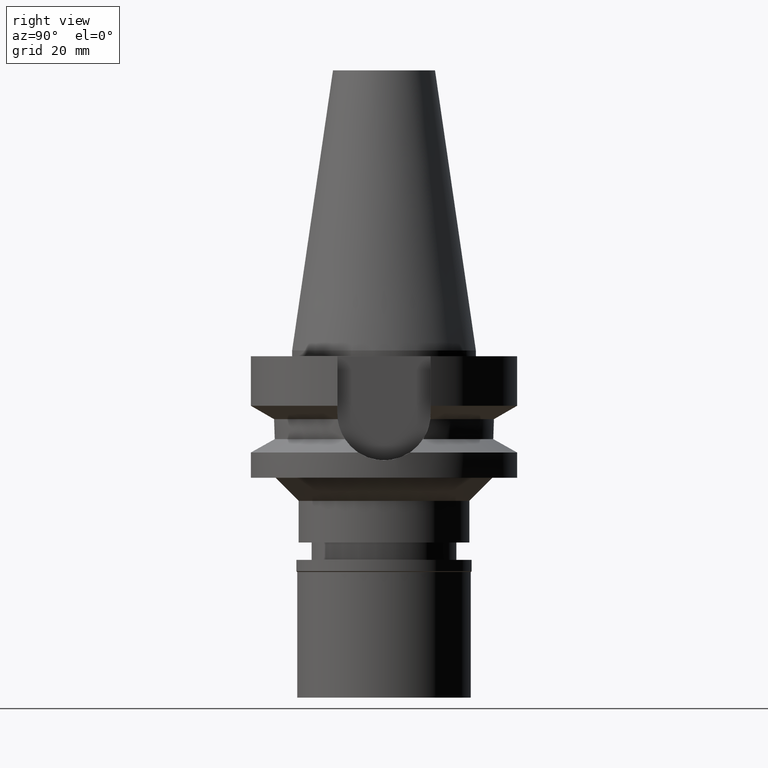
[diagram: clean part render]
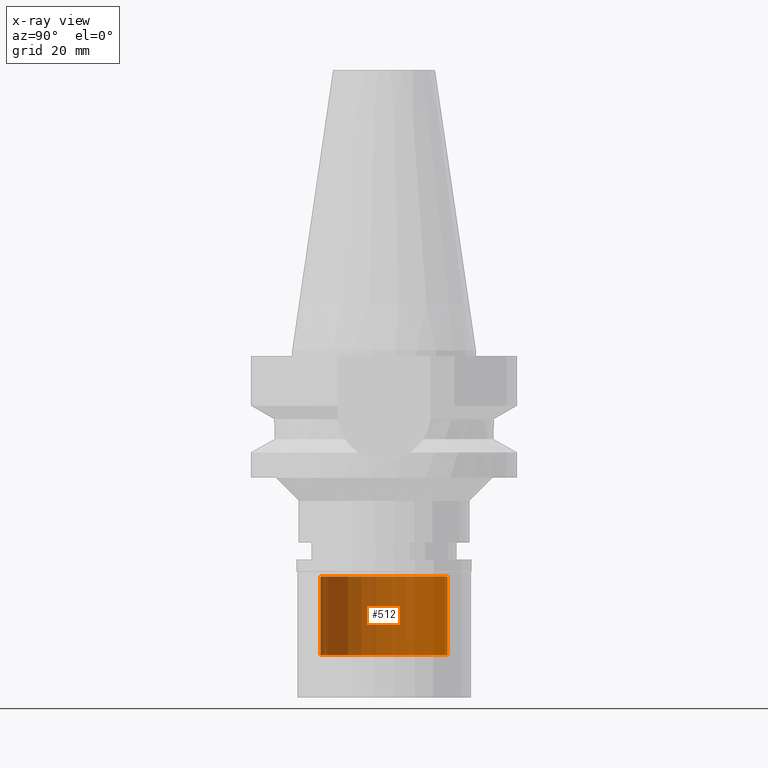
[diagram: x-ray — body ghosted, one internal face saturated and labeled with its STEP entity id]
A machine part, right view, then the same camera in x-ray: the body is ghosted and one INTERNAL B-rep face — a face not visible from any outside direction — is saturated and labeled: STEP entity #512.
In plain terms, the highlighted cylindrical surface (partial cylindrical patch) has radius 11 mm, axis along (0, 0, -1).
Its self-contained STEP definition (entity closure, byte-faithful):
#51 = EDGE_LOOP ( 'NONE', ( #1328, #555, #95, #1494 ) ) ;
#71 = VECTOR ( 'NONE', #1202, 1000.000000000000000 ) ;
#95 = ORIENTED_EDGE ( 'NONE', *, *, #933, .T. ) ;
#116 = CARTESIAN_POINT ( 'NONE',  ( 0.0000000000000000000, 11.00000000000000000, -2.899999999999999911 ) ) ;
#122 = FACE_OUTER_BOUND ( 'NONE', #51, .T. ) ;
#352 = AXIS2_PLACEMENT_3D ( 'NONE', #1991, #1718, #2459 ) ;
#445 = EDGE_CURVE ( 'NONE', #2521, #1092, #2116, .T. ) ;
#495 = DIRECTION ( 'NONE',  ( 0.0000000000000000000, 1.000000000000000000, 0.0000000000000000000 ) ) ;
#512 = ADVANCED_FACE ( 'NONE', ( #122 ), #1292, .F. ) ;
#555 = ORIENTED_EDGE ( 'NONE', *, *, #726, .F. ) ;
#726 = EDGE_CURVE ( 'NONE', #821, #1092, #1903, .T. ) ;
#821 = VERTEX_POINT ( 'NONE', #1872 ) ;
#918 = CARTESIAN_POINT ( 'NONE',  ( 0.0000000000000000000, -11.00000000000000000, -2.899999999999999911 ) ) ;
#933 = EDGE_CURVE ( 'NONE', #821, #2106, #2930, .T. ) ;
#1092 = VERTEX_POINT ( 'NONE', #918 ) ;
#1189 = CARTESIAN_POINT ( 'NONE',  ( 0.0000000000000000000, -11.00000000000000000, -16.50000000000000000 ) ) ;
#1202 = DIRECTION ( 'NONE',  ( 0.0000000000000000000, 0.0000000000000000000, 1.000000000000000000 ) ) ;
#1255 = CARTESIAN_POINT ( 'NONE',  ( 0.0000000000000000000, 11.00000000000000000, -16.50000000000000000 ) ) ;
#1283 = DIRECTION ( 'NONE',  ( 0.0000000000000000000, -1.000000000000000000, 0.0000000000000000000 ) ) ;
#1292 = CYLINDRICAL_SURFACE ( 'NONE', #2788, 11.00000000000000000 ) ;
#1328 = ORIENTED_EDGE ( 'NONE', *, *, #445, .T. ) ;
#1449 = AXIS2_PLACEMENT_3D ( 'NONE', #1637, #2550, #495 ) ;
#1459 = CARTESIAN_POINT ( 'NONE',  ( 0.0000000000000000000, 11.00000000000000000, -16.50000000000000000 ) ) ;
#1494 = ORIENTED_EDGE ( 'NONE', *, *, #2635, .T. ) ;
#1637 = CARTESIAN_POINT ( 'NONE',  ( 0.0000000000000000000, 0.0000000000000000000, -2.899999999999999911 ) ) ;
#1718 = DIRECTION ( 'NONE',  ( 0.0000000000000000000, 0.0000000000000000000, -1.000000000000000000 ) ) ;
#1719 = DIRECTION ( 'NONE',  ( 0.0000000000000000000, 0.0000000000000000000, -1.000000000000000000 ) ) ;
#1872 = CARTESIAN_POINT ( 'NONE',  ( 0.0000000000000000000, -11.00000000000000000, -16.50000000000000000 ) ) ;
#1903 = LINE ( 'NONE', #1189, #71 ) ;
#1991 = CARTESIAN_POINT ( 'NONE',  ( 0.0000000000000000000, 0.0000000000000000000, -16.50000000000000000 ) ) ;
#2106 = VERTEX_POINT ( 'NONE', #1255 ) ;
#2116 = CIRCLE ( 'NONE', #1449, 11.00000000000000000 ) ;
#2129 = DIRECTION ( 'NONE',  ( 0.0000000000000000000, 0.0000000000000000000, 1.000000000000000000 ) ) ;
#2206 = CARTESIAN_POINT ( 'NONE',  ( 0.0000000000000000000, 0.0000000000000000000, 0.0000000000000000000 ) ) ;
#2348 = VECTOR ( 'NONE', #2129, 1000.000000000000000 ) ;
#2459 = DIRECTION ( 'NONE',  ( 0.0000000000000000000, -1.000000000000000000, 0.0000000000000000000 ) ) ;
#2521 = VERTEX_POINT ( 'NONE', #116 ) ;
#2550 = DIRECTION ( 'NONE',  ( 0.0000000000000000000, 0.0000000000000000000, 1.000000000000000000 ) ) ;
#2635 = EDGE_CURVE ( 'NONE', #2106, #2521, #2841, .T. ) ;
#2788 = AXIS2_PLACEMENT_3D ( 'NONE', #2206, #1719, #1283 ) ;
#2841 = LINE ( 'NONE', #1459, #2348 ) ;
#2930 = CIRCLE ( 'NONE', #352, 11.00000000000000000 ) ;